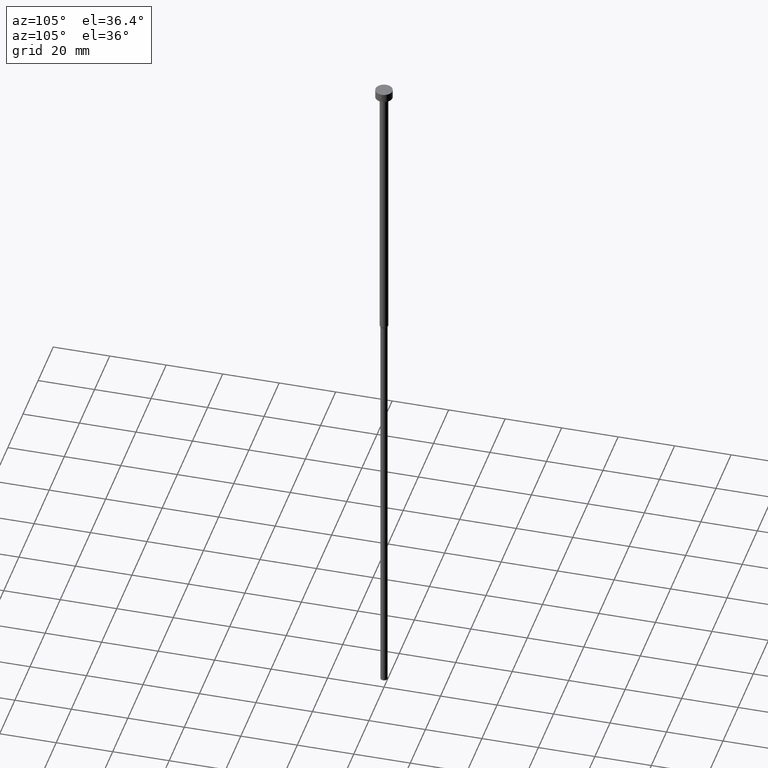
[diagram: clean part render]
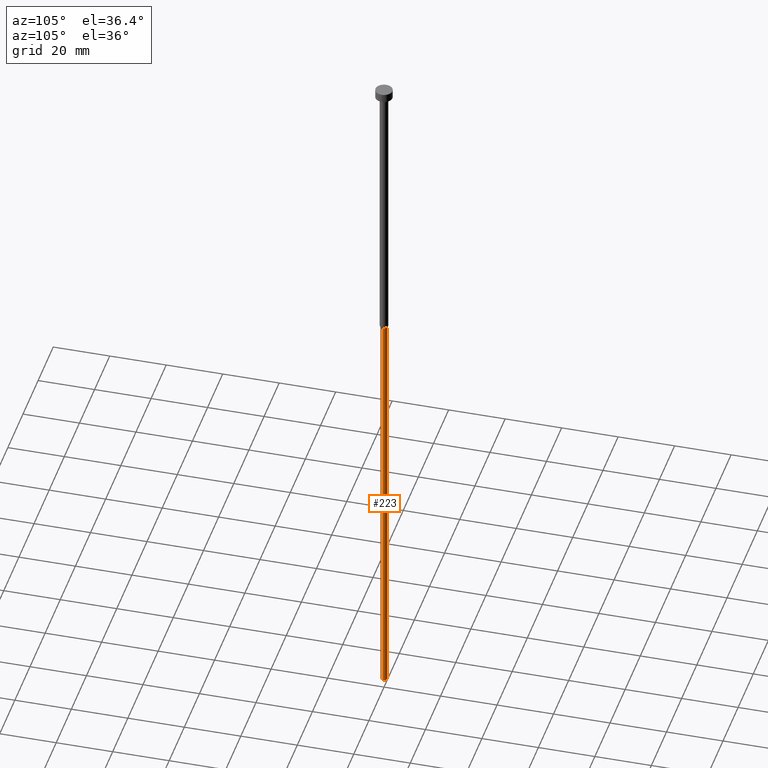
[diagram: same view with one face highlighted and labeled with its STEP entity id]
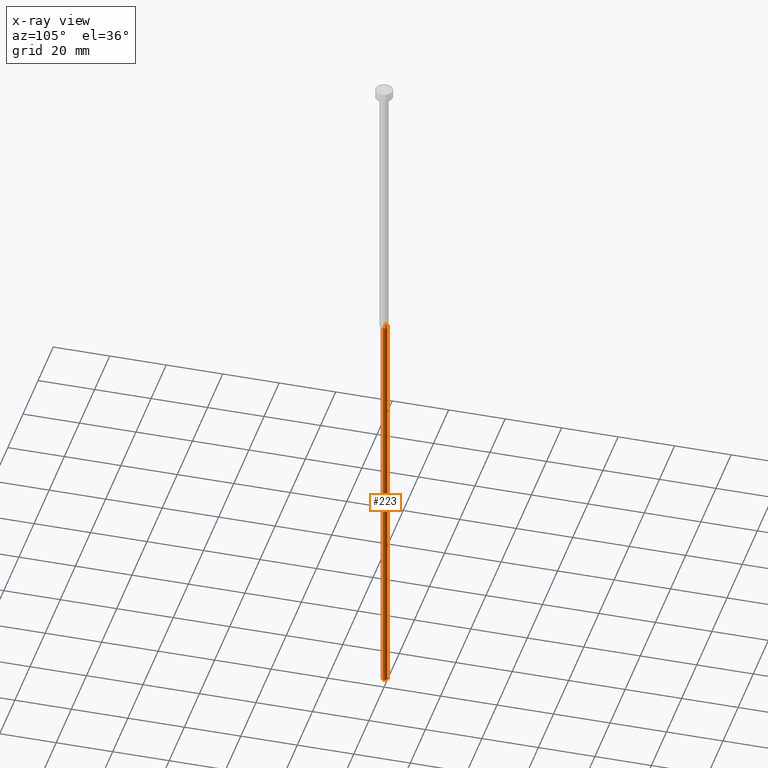
[diagram: x-ray of the same camera — body ghosted, the highlighted face saturated]
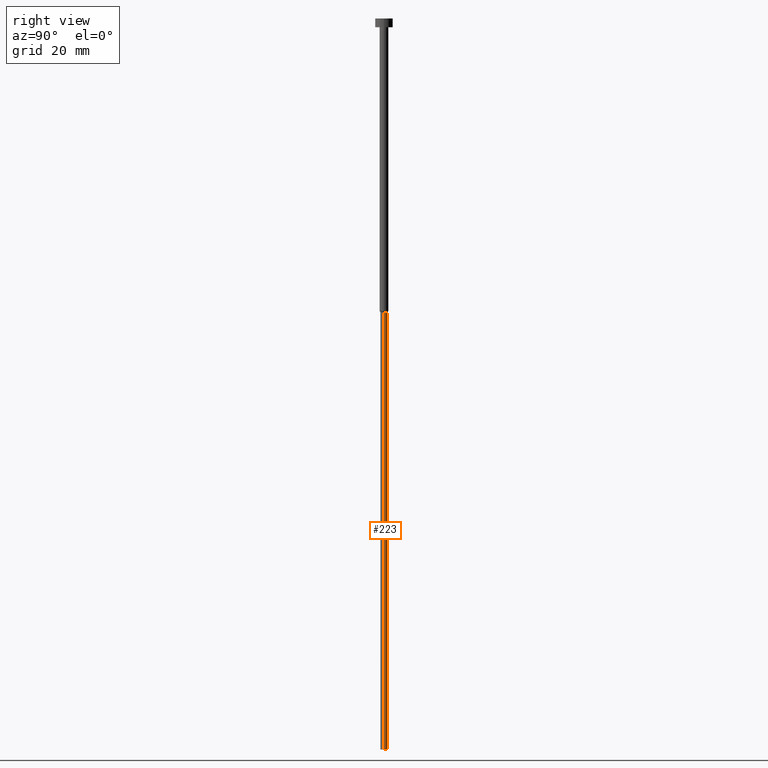
[diagram: same view with one face highlighted and labeled with its STEP entity id]
A machine part, auxiliary view. The second image highlights one B-rep face of the part: STEP entity #223.
The next image is the same camera in x-ray: the body ghosted, the highlighted face saturated — about 0% of this face is hidden behind the body in this view.
A second angle (right view) of the same face is appended — the face is thin or edge-on in the first view.
In plain terms, the highlighted cylindrical surface (edge-blend (fillet) strip) has radius 1.25 mm, axis along (-0, -0, 1).
Its self-contained STEP definition (entity closure, byte-faithful):
#5 = AXIS2_PLACEMENT_3D ( 'NONE', #25, #140, #246 ) ;
#6 = DIRECTION ( 'NONE',  ( -0.000000000000000000, -0.000000000000000000, 1.000000000000000000 ) ) ;
#14 = LINE ( 'NONE', #315, #354 ) ;
#16 = EDGE_CURVE ( 'NONE', #343, #298, #14, .T. ) ;
#17 = CARTESIAN_POINT ( 'NONE',  ( 0.000000000000000000, 0.000000000000000000, -250.0000000000000000 ) ) ;
#25 = CARTESIAN_POINT ( 'NONE',  ( 0.000000000000000000, 0.000000000000000000, -100.4330127018922241 ) ) ;
#41 = EDGE_CURVE ( 'NONE', #212, #343, #186, .T. ) ;
#49 = VERTEX_POINT ( 'NONE', #332 ) ;
#59 = DIRECTION ( 'NONE',  ( -0.000000000000000000, -0.000000000000000000, 1.000000000000000000 ) ) ;
#74 = ORIENTED_EDGE ( 'NONE', *, *, #242, .F. ) ;
#79 = EDGE_CURVE ( 'NONE', #49, #298, #274, .T. ) ;
#82 = ORIENTED_EDGE ( 'NONE', *, *, #16, .T. ) ;
#84 = EDGE_LOOP ( 'NONE', ( #296, #82, #244, #74 ) ) ;
#97 = CARTESIAN_POINT ( 'NONE',  ( 0.000000000000000000, 0.000000000000000000, 0.000000000000000000 ) ) ;
#99 = CYLINDRICAL_SURFACE ( 'NONE', #241, 1.250000000000000000 ) ;
#120 = FACE_OUTER_BOUND ( 'NONE', #84, .T. ) ;
#121 = CARTESIAN_POINT ( 'NONE',  ( 1.250000000000000000, 0.000000000000000000, 0.000000000000000000 ) ) ;
#138 = DIRECTION ( 'NONE',  ( 1.000000000000000000, 0.000000000000000000, 0.000000000000000000 ) ) ;
#140 = DIRECTION ( 'NONE',  ( -0.000000000000000000, -0.000000000000000000, 1.000000000000000000 ) ) ;
#143 = DIRECTION ( 'NONE',  ( -0.000000000000000000, -0.000000000000000000, 1.000000000000000000 ) ) ;
#186 = CIRCLE ( 'NONE', #252, 1.250000000000000000 ) ;
#212 = VERTEX_POINT ( 'NONE', #231 ) ;
#223 = ADVANCED_FACE ( 'NONE', ( #120 ), #99, .T. ) ;
#231 = CARTESIAN_POINT ( 'NONE',  ( 1.250000000000000000, 0.000000000000000000, -250.0000000000000000 ) ) ;
#234 = DIRECTION ( 'NONE',  ( 1.000000000000000000, 0.000000000000000000, 0.000000000000000000 ) ) ;
#241 = AXIS2_PLACEMENT_3D ( 'NONE', #97, #6, #234 ) ;
#242 = EDGE_CURVE ( 'NONE', #212, #49, #311, .T. ) ;
#244 = ORIENTED_EDGE ( 'NONE', *, *, #79, .F. ) ;
#246 = DIRECTION ( 'NONE',  ( 1.000000000000000000, 0.000000000000000000, 0.000000000000000000 ) ) ;
#252 = AXIS2_PLACEMENT_3D ( 'NONE', #17, #59, #138 ) ;
#274 = CIRCLE ( 'NONE', #5, 1.250000000000000000 ) ;
#289 = DIRECTION ( 'NONE',  ( -0.000000000000000000, -0.000000000000000000, 1.000000000000000000 ) ) ;
#296 = ORIENTED_EDGE ( 'NONE', *, *, #41, .T. ) ;
#298 = VERTEX_POINT ( 'NONE', #309 ) ;
#305 = VECTOR ( 'NONE', #143, 1000.000000000000000 ) ;
#309 = CARTESIAN_POINT ( 'NONE',  ( -1.250000000000000000, 1.530808498934191571E-16, -100.4330127018922241 ) ) ;
#311 = LINE ( 'NONE', #121, #305 ) ;
#312 = CARTESIAN_POINT ( 'NONE',  ( -1.250000000000000000, 1.530808498934191571E-16, -250.0000000000000000 ) ) ;
#315 = CARTESIAN_POINT ( 'NONE',  ( -1.250000000000000000, 1.530808498934191571E-16, 0.000000000000000000 ) ) ;
#332 = CARTESIAN_POINT ( 'NONE',  ( 1.250000000000000000, 0.000000000000000000, -100.4330127018922241 ) ) ;
#343 = VERTEX_POINT ( 'NONE', #312 ) ;
#354 = VECTOR ( 'NONE', #289, 1000.000000000000000 ) ;